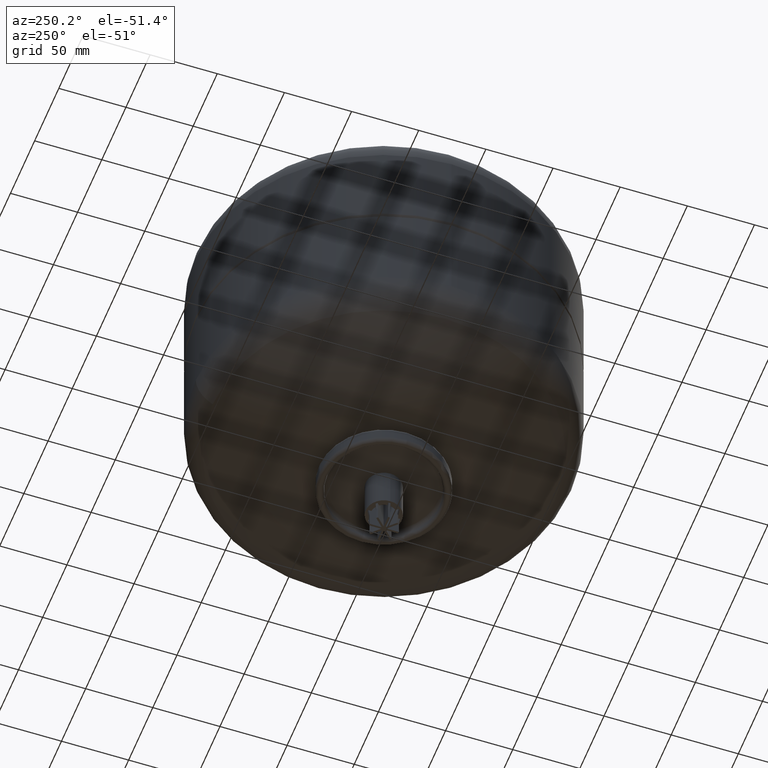
[diagram: clean part render]
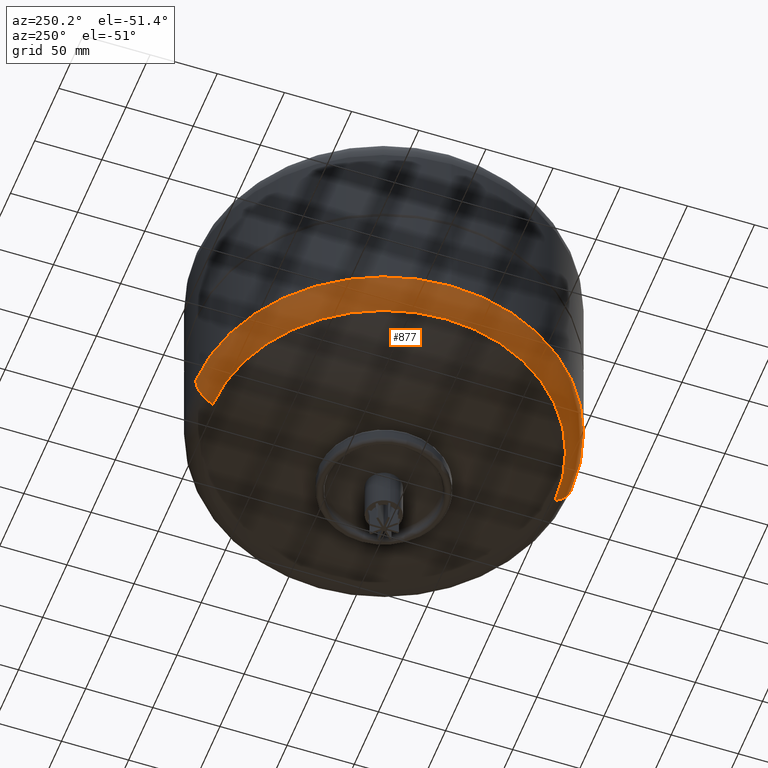
[diagram: same view with one face highlighted and labeled with its STEP entity id]
A machine part, auxiliary view. The second image highlights one B-rep face of the part: STEP entity #877.
In plain terms, the highlighted toroidal blend (fillet) surface has major radius 115 mm and minor (blend) radius 25 mm.
Its self-contained STEP definition (entity closure, byte-faithful):
#782=CARTESIAN_POINT('',(-139.999999999999970,1.180331E-016,107.357457576154590));
#783=VERTEX_POINT('',#782);
#807=CARTESIAN_POINT('',(-9.759320E-015,140.0,107.357457576154590));
#808=VERTEX_POINT('',#807);
#816=CARTESIAN_POINT('',(-1.190815E-016,1.180331E-016,107.357457576154570));
#817=DIRECTION('',(0.0,0.0,1.0));
#818=DIRECTION('',(-1.0,0.0,0.0));
#819=AXIS2_PLACEMENT_3D('',#816,#817,#818);
#820=CIRCLE('',#819,140.0);
#821=EDGE_CURVE('',#808,#783,#820,.T.);
#826=CARTESIAN_POINT('',(7.385169E-015,1.180331E-016,107.357457576154590));
#827=DIRECTION('',(1.853286E-016,-1.836970E-016,1.0));
#828=DIRECTION('',(0.0,-1.0,0.0));
#829=AXIS2_PLACEMENT_3D('',#826,#827,#828);
#830=TOROIDAL_SURFACE('',#829,115.000000000000010,25.0);
#831=CARTESIAN_POINT('',(7.385169E-015,-140.0,107.357457576154540));
#832=VERTEX_POINT('',#831);
#833=CARTESIAN_POINT('',(3.355614E-015,-127.339055793991430,85.614695513510156));
#834=VERTEX_POINT('',#833);
#835=CARTESIAN_POINT('',(7.385169E-015,-115.000000000000010,107.357457576154560));
#836=DIRECTION('',(1.0,0.0,0.0));
#837=DIRECTION('',(0.0,-1.0,0.0));
#838=AXIS2_PLACEMENT_3D('',#835,#836,#837);
#839=CIRCLE('',#838,25.0);
#840=EDGE_CURVE('',#832,#834,#839,.T.);
#841=ORIENTED_EDGE('',*,*,#840,.F.);
#842=CARTESIAN_POINT('',(-1.190815E-016,1.180331E-016,107.357457576154570));
#843=DIRECTION('',(0.0,0.0,1.0));
#844=DIRECTION('',(-1.0,0.0,0.0));
#845=AXIS2_PLACEMENT_3D('',#842,#843,#844);
#846=CIRCLE('',#845,140.0);
#847=EDGE_CURVE('',#783,#832,#846,.T.);
#848=ORIENTED_EDGE('',*,*,#847,.F.);
#849=ORIENTED_EDGE('',*,*,#821,.F.);
#850=CARTESIAN_POINT('',(-1.223841E-014,127.339055793991430,85.614695513510213));
#851=VERTEX_POINT('',#850);
#852=CARTESIAN_POINT('',(-6.697804E-015,115.000000000000010,107.357457576154620));
#853=DIRECTION('',(-1.0,0.0,0.0));
#854=DIRECTION('',(0.0,1.0,0.0));
#855=AXIS2_PLACEMENT_3D('',#852,#853,#854);
#856=CIRCLE('',#855,25.0);
#857=EDGE_CURVE('',#808,#851,#856,.T.);
#858=ORIENTED_EDGE('',*,*,#857,.T.);
#859=CARTESIAN_POINT('',(-127.339055793991450,4.112114E-015,85.614695513510213));
#860=VERTEX_POINT('',#859);
#861=CARTESIAN_POINT('',(-4.148636E-015,4.112114E-015,85.614695513510185));
#862=DIRECTION('',(0.0,0.0,1.0));
#863=DIRECTION('',(-1.0,0.0,0.0));
#864=AXIS2_PLACEMENT_3D('',#861,#862,#863);
#865=CIRCLE('',#864,127.339055793991430);
#866=EDGE_CURVE('',#851,#860,#865,.T.);
#867=ORIENTED_EDGE('',*,*,#866,.T.);
#868=CARTESIAN_POINT('',(-4.148636E-015,4.112114E-015,85.614695513510185));
#869=DIRECTION('',(0.0,0.0,1.0));
#870=DIRECTION('',(-1.0,0.0,0.0));
#871=AXIS2_PLACEMENT_3D('',#868,#869,#870);
#872=CIRCLE('',#871,127.339055793991430);
#873=EDGE_CURVE('',#860,#834,#872,.T.);
#874=ORIENTED_EDGE('',*,*,#873,.T.);
#875=EDGE_LOOP('',(#841,#848,#849,#858,#867,#874));
#876=FACE_OUTER_BOUND('',#875,.T.);
#877=ADVANCED_FACE('',(#876),#830,.T.);